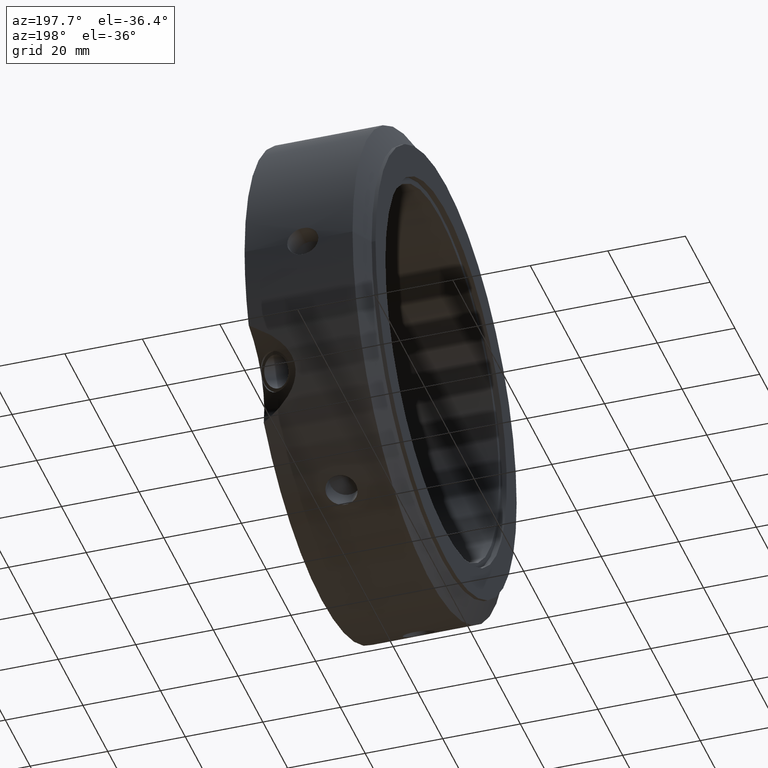
[diagram: clean part render]
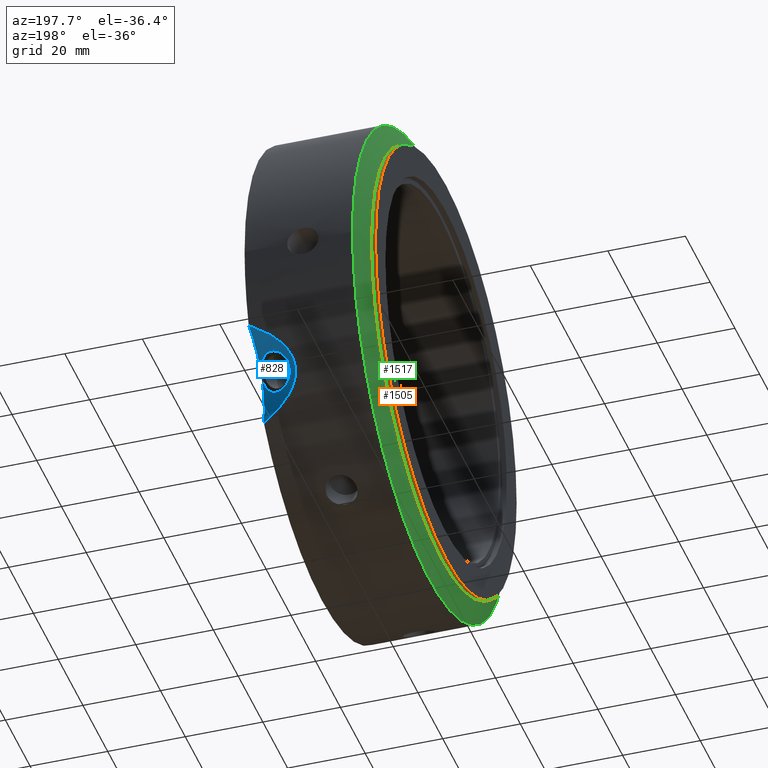
[diagram: same view with three faces highlighted in distinct colors, each labeled with its STEP entity id]
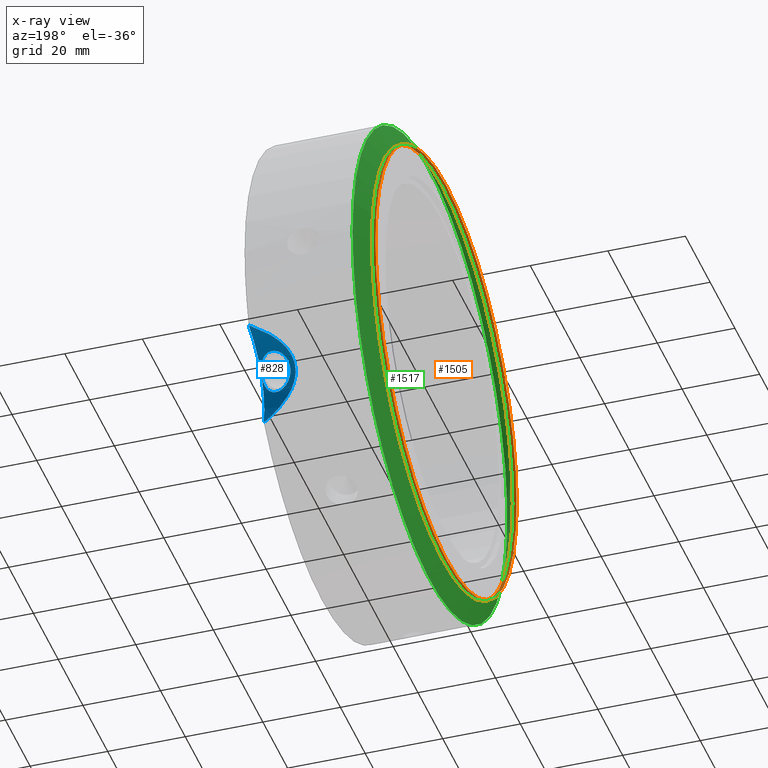
[diagram: x-ray of the same camera — body ghosted, the three highlighted faces saturated]
A machine part, auxiliary view with three faces highlighted in distinct colors.
The next image is the same camera in x-ray (body ghosted, the three faces saturated) — at least one of them is partly hidden behind the body in this view.
Their STEP definitions:

[orange] entity #1505 — the highlighted cylindrical surface (bore or boss wall) has radius 57 mm, axis along (1, 0, 0).
#1471=CARTESIAN_POINT('',(-1.776357E-014,57.0,0.0));
#1472=VERTEX_POINT('',#1471);
#1473=CARTESIAN_POINT('',(-1.776357E-014,0.0,0.0));
#1474=DIRECTION('',(1.0,0.0,0.0));
#1475=DIRECTION('',(0.0,1.0,0.0));
#1476=AXIS2_PLACEMENT_3D('',#1473,#1474,#1475);
#1477=CIRCLE('',#1476,57.0);
#1478=EDGE_CURVE('',#1472,#1472,#1477,.T.);
#1486=CARTESIAN_POINT('',(0.499999999999982,0.0,0.0));
#1487=DIRECTION('',(1.0,0.0,0.0));
#1488=DIRECTION('',(0.0,1.0,0.0));
#1489=AXIS2_PLACEMENT_3D('',#1486,#1487,#1488);
#1490=CYLINDRICAL_SURFACE('',#1489,57.0);
#1491=CARTESIAN_POINT('',(0.999999999999982,57.0,0.0));
#1492=VERTEX_POINT('',#1491);
#1493=CARTESIAN_POINT('',(0.999999999999982,0.0,0.0));
#1494=DIRECTION('',(1.0,0.0,0.0));
#1495=DIRECTION('',(0.0,1.0,0.0));
#1496=AXIS2_PLACEMENT_3D('',#1493,#1494,#1495);
#1497=CIRCLE('',#1496,57.0);
#1498=EDGE_CURVE('',#1492,#1492,#1497,.T.);
#1499=ORIENTED_EDGE('',*,*,#1498,.F.);
#1500=EDGE_LOOP('',(#1499));
#1501=FACE_OUTER_BOUND('',#1500,.T.);
#1502=ORIENTED_EDGE('',*,*,#1478,.T.);
#1503=EDGE_LOOP('',(#1502));
#1504=FACE_BOUND('',#1503,.T.);
#1505=ADVANCED_FACE('',(#1501,#1504),#1490,.T.);

[blue] entity #828 — the highlighted cylindrical surface (partial cylindrical patch) has radius 20 mm, axis along (-0.866, 0.433, -0.25).
#740=CARTESIAN_POINT('',(35.321507575751177,67.269681525945188,-38.83816873730489));
#741=DIRECTION('',(-0.866025403784438,0.43301270189222,-0.25));
#742=DIRECTION('',(-0.5,-0.75,0.43301270189222));
#743=AXIS2_PLACEMENT_3D('',#740,#741,#742);
#744=CYLINDRICAL_SURFACE('',#743,19.999999999999996);
#745=CARTESIAN_POINT('',(31.999999999999886,49.0876277835048,-27.983268738645087));
#746=VERTEX_POINT('',#745);
#747=CARTESIAN_POINT('',(31.999999999999986,59.186412670163989,-20.080302667964212));
#748=VERTEX_POINT('',#747);
#749=CARTESIAN_POINT('',(31.999999999999986,68.93043531382078,-39.797005383792559));
#750=DIRECTION('',(-1.0,0.0,0.0));
#751=DIRECTION('',(0.0,-0.866025403784438,0.5));
#752=AXIS2_PLACEMENT_3D('',#749,#750,#751);
#753=ELLIPSE('',#752,23.094010767585029,19.999999999999993);
#754=EDGE_CURVE('',#746,#748,#753,.T.);
#755=ORIENTED_EDGE('',*,*,#754,.F.);
#756=CARTESIAN_POINT('',(31.999999999999886,48.778035500345908,-28.519498302707575));
#757=VERTEX_POINT('',#756);
#758=CARTESIAN_POINT('',(31.999999999999787,48.778035500345908,-28.519498302707575));
#759=CARTESIAN_POINT('',(31.975286752578995,48.523875770417305,-29.007918674485271));
#760=CARTESIAN_POINT('',(31.88117920326642,48.320019246205916,-29.54599332358157));
#761=CARTESIAN_POINT('',(31.522336300092331,48.035054907813553,-30.716201986488571));
#762=CARTESIAN_POINT('',(31.226595311853433,47.984705338031759,-31.347146867727407));
#763=CARTESIAN_POINT('',(30.527797341769308,48.048325717595795,-32.425893640759597));
#764=CARTESIAN_POINT('',(30.07723764741991,48.166458188281908,-32.946740156544671));
#765=CARTESIAN_POINT('',(29.052997990353088,48.544243517924066,-33.76683428690697));
#766=CARTESIAN_POINT('',(28.478084891561206,48.802571807799708,-34.065150716113436));
#767=CARTESIAN_POINT('',(27.363529362019179,49.359849572570731,-34.386895183617369));
#768=CARTESIAN_POINT('',(26.753151792186983,49.69416661700712,-34.430742697709945));
#769=CARTESIAN_POINT('',(25.602581791227827,50.403786116377951,-34.238462038096401));
#770=CARTESIAN_POINT('',(25.063169433967296,50.780639671496814,-34.003395837554919));
#771=CARTESIAN_POINT('',(24.19894410940401,51.498530939256462,-33.37585502447989));
#772=CARTESIAN_POINT('',(23.815628644850626,51.888408735434417,-32.94093685614834));
#773=CARTESIAN_POINT('',(23.302421354518835,52.649498846350568,-31.930362582940131));
#774=CARTESIAN_POINT('',(23.173488097609784,53.02199561175938,-31.355187727439599));
#775=CARTESIAN_POINT('',(23.173488097609784,53.665386918272411,-30.240801295410897));
#776=CARTESIAN_POINT('',(23.302421354518835,53.977254572049503,-29.63062220598907));
#777=CARTESIAN_POINT('',(23.815628644850626,54.471892509600735,-28.466211698762464));
#778=CARTESIAN_POINT('',(24.19894410940401,54.653603793854288,-27.911108538735093));
#779=CARTESIAN_POINT('',(25.063169433967296,54.83812444600899,-26.97562605716271));
#780=CARTESIAN_POINT('',(25.602581791227816,54.853270969689554,-26.531728204652548));
#781=CARTESIAN_POINT('',(26.75315179218698,54.664981155885897,-25.821039361369841));
#782=CARTESIAN_POINT('',(27.363529362019179,54.459849572570739,-25.553436065016083));
#783=CARTESIAN_POINT('',(27.920807126790194,54.181210690185239,-25.392563831264123));
#784=CARTESIAN_POINT('',(28.478084891561206,53.902571807799724,-25.231691597512153));
#785=CARTESIAN_POINT('',(29.05299799035307,53.515058056802843,-25.157130950566877));
#786=CARTESIAN_POINT('',(30.077237647419896,52.615943041593511,-25.240006323100829));
#787=CARTESIAN_POINT('',(30.527797341769308,52.105810492107963,-25.398123860367392));
#788=CARTESIAN_POINT('',(31.226595311853433,51.139778192629578,-25.88240038198261));
#789=CARTESIAN_POINT('',(31.522336300092331,50.618538681979892,-26.24147682910268));
#790=CARTESIAN_POINT('',(31.881179203266431,49.747590421369956,-27.073367516776617));
#791=CARTESIAN_POINT('',(31.975286752579002,49.383532368225843,-27.518949770019052));
#792=CARTESIAN_POINT('',(31.999999999999794,49.087627783504814,-27.983268738645076));
#793=B_SPLINE_CURVE_WITH_KNOTS('',3,(#758,#759,#760,#761,#762,#763,#764,#765,#766,#767,#768,#769,#770,#771,#772,#773,#774,#775,#776,#777,#778,#779,#780,#781,#782,#783,#784,#785,#786,#787,#788,#789,#790,#791,#792),.UNSPECIFIED.,.F.,.U.,(4,2,2,2,2,2,2,2,2,2,2,2,3,2,2,2,4),(0.802813320346797,0.965145536866459,1.158162928820371,1.351209609322734,1.544256289825096,1.737302970327459,1.930349650829822,2.123367042783733,2.316384434737644,2.509401826691556,2.702419218645467,2.89546589914783,3.088512579650192,3.281559260152555,3.474605940654918,3.667623332608829,3.829955549128501),.UNSPECIFIED.);
#794=EDGE_CURVE('',#757,#746,#793,.T.);
#795=ORIENTED_EDGE('',*,*,#794,.F.);
#796=CARTESIAN_POINT('',(31.999999999999989,46.983258561219401,-41.216785597249142));
#797=VERTEX_POINT('',#796);
#798=CARTESIAN_POINT('',(31.999999999999986,68.93043531382078,-39.797005383792559));
#799=DIRECTION('',(-1.0,0.0,0.0));
#800=DIRECTION('',(0.0,-0.866025403784438,0.5));
#801=AXIS2_PLACEMENT_3D('',#798,#799,#800);
#802=ELLIPSE('',#801,23.094010767585029,19.999999999999993);
#803=EDGE_CURVE('',#797,#757,#802,.T.);
#804=ORIENTED_EDGE('',*,*,#803,.F.);
#805=CARTESIAN_POINT('',(31.999999999999979,59.186412670164003,-20.080302667964204));
#806=CARTESIAN_POINT('',(30.664839463063945,58.954387797049264,-20.764192752540474));
#807=CARTESIAN_POINT('',(29.389425953236874,58.692272517044813,-21.498734613729184));
#808=CARTESIAN_POINT('',(26.554914302788358,57.968305297610058,-23.394622902583091));
#809=CARTESIAN_POINT('',(24.885301721691327,57.417497475550441,-24.744847389249145));
#810=CARTESIAN_POINT('',(23.027148686384812,56.357505955729593,-27.033093843150336));
#811=CARTESIAN_POINT('',(22.514416749918208,55.964939215861193,-27.839896546009971));
#812=CARTESIAN_POINT('',(21.804501483200784,55.102059544849745,-29.510969064617335));
#813=CARTESIAN_POINT('',(21.607695154586754,54.631586565001413,-30.375316371320281));
#814=CARTESIAN_POINT('',(21.60769515458675,53.621588908053397,-32.124683628679769));
#815=CARTESIAN_POINT('',(21.804501483200806,53.108278672680157,-32.964298834374056));
#816=CARTESIAN_POINT('',(22.514416749918226,52.092527255505857,-34.547110809182811));
#817=CARTESIAN_POINT('',(23.027148686384812,51.590098988921653,-35.29048493001951));
#818=CARTESIAN_POINT('',(24.885301721691334,50.138415189633989,-37.352587740931035));
#819=CARTESIAN_POINT('',(26.554914302788362,49.244490394399172,-38.504713550770859));
#820=CARTESIAN_POINT('',(29.389425953236884,47.964586583231664,-40.079631698735497));
#821=CARTESIAN_POINT('',(30.664839463063949,47.45951231130136,-40.673901120533777));
#822=CARTESIAN_POINT('',(31.999999999999986,46.983258561219394,-41.216785597249135));
#823=B_SPLINE_CURVE_WITH_KNOTS('',3,(#805,#806,#807,#808,#809,#810,#811,#812,#813,#814,#815,#816,#817,#818,#819,#820,#821,#822),.UNSPECIFIED.,.F.,.U.,(4,2,2,2,2,2,2,2,4),(2.376565189463518,2.8164002107251,3.422398804893912,3.725398101978318,4.028397399062723,4.331396696147129,4.634395993231536,5.240394587400347,5.68022960866193),.UNSPECIFIED.);
#824=EDGE_CURVE('',#748,#797,#823,.T.);
#825=ORIENTED_EDGE('',*,*,#824,.F.);
#826=EDGE_LOOP('',(#755,#795,#804,#825));
#827=FACE_OUTER_BOUND('',#826,.T.);
#828=ADVANCED_FACE('',(#827),#744,.F.);

[green] entity #1517 — the highlighted conical surface has half-angle 60 deg.
#1117=CARTESIAN_POINT('',(4.175426480542916,62.5,0.0));
#1118=VERTEX_POINT('',#1117);
#1119=CARTESIAN_POINT('',(4.175426480542916,0.0,0.0));
#1120=DIRECTION('',(1.0,0.0,0.0));
#1121=DIRECTION('',(0.0,1.0,0.0));
#1122=AXIS2_PLACEMENT_3D('',#1119,#1120,#1121);
#1123=CIRCLE('',#1122,62.5);
#1124=EDGE_CURVE('',#1118,#1118,#1123,.T.);
#1491=CARTESIAN_POINT('',(0.999999999999982,57.0,0.0));
#1492=VERTEX_POINT('',#1491);
#1493=CARTESIAN_POINT('',(0.999999999999982,0.0,0.0));
#1494=DIRECTION('',(1.0,0.0,0.0));
#1495=DIRECTION('',(0.0,1.0,0.0));
#1496=AXIS2_PLACEMENT_3D('',#1493,#1494,#1495);
#1497=CIRCLE('',#1496,57.0);
#1498=EDGE_CURVE('',#1492,#1492,#1497,.T.);
#1506=CARTESIAN_POINT('',(2.587713240271449,0.0,0.0));
#1507=DIRECTION('',(1.0,0.0,0.0));
#1508=DIRECTION('',(0.0,1.0,0.0));
#1509=AXIS2_PLACEMENT_3D('',#1506,#1507,#1508);
#1510=CONICAL_SURFACE('',#1509,59.75,60.000000000000057);
#1511=ORIENTED_EDGE('',*,*,#1124,.F.);
#1512=EDGE_LOOP('',(#1511));
#1513=FACE_OUTER_BOUND('',#1512,.T.);
#1514=ORIENTED_EDGE('',*,*,#1498,.T.);
#1515=EDGE_LOOP('',(#1514));
#1516=FACE_BOUND('',#1515,.T.);
#1517=ADVANCED_FACE('',(#1513,#1516),#1510,.T.);